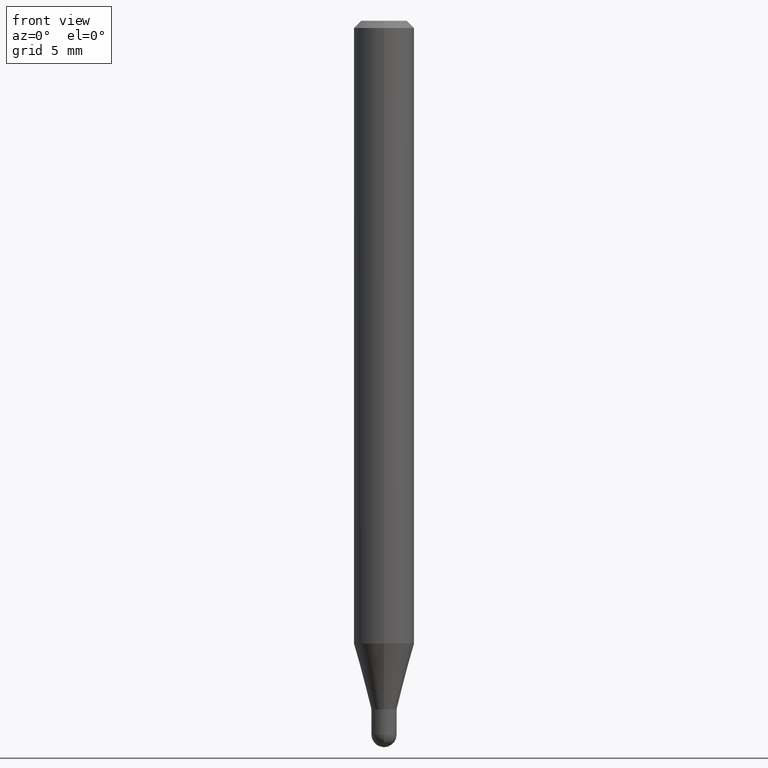
[diagram: clean part render]
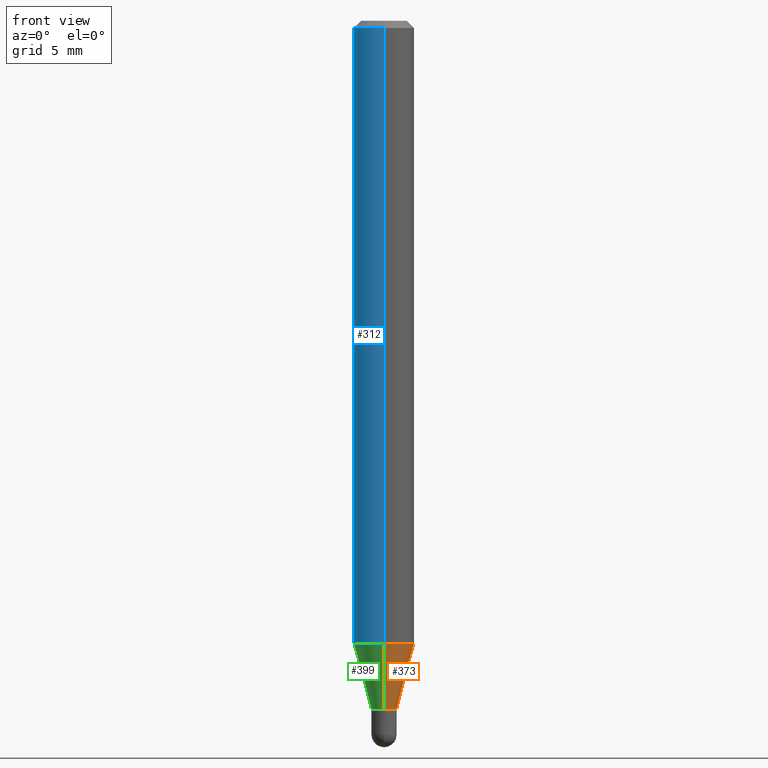
[diagram: same view with three faces highlighted in distinct colors, each labeled with its STEP entity id]
A machine part, front view with three faces highlighted in distinct colors.
Their STEP definitions:

[orange] entity #373 — the highlighted conical surface has half-angle 15 deg.
#6 = EDGE_CURVE ( 'NONE', #105, #171, #96, .T. ) ;
#31 = ORIENTED_EDGE ( 'NONE', *, *, #294, .T. ) ;
#35 = EDGE_CURVE ( 'NONE', #171, #178, #357, .T. ) ;
#36 = CARTESIAN_POINT ( 'NONE',  ( 3.144151605738781381E-16, 0.02599999999999522485, -1.421999999999999931 ) ) ;
#58 = DIRECTION ( 'NONE',  ( -2.445468490087946806E-29, 3.491481791512312384E-15, 1.000000000000000000 ) ) ;
#62 = DIRECTION ( 'NONE',  ( 1.839019923739649619E-15, 0.2588190451025318972, 0.9659258262890650926 ) ) ;
#65 = CARTESIAN_POINT ( 'NONE',  ( 3.477456192905060686E-29, -4.964887107530508633E-15, -1.421999999999999931 ) ) ;
#80 = VERTEX_POINT ( 'NONE', #36 ) ;
#82 = VECTOR ( 'NONE', #62, 39.37007874015748854 ) ;
#96 = LINE ( 'NONE', #186, #283 ) ;
#105 = VERTEX_POINT ( 'NONE', #392 ) ;
#121 = DIRECTION ( 'NONE',  ( -2.445468490087946806E-29, 3.491481791512312384E-15, 1.000000000000000000 ) ) ;
#123 = ORIENTED_EDGE ( 'NONE', *, *, #454, .T. ) ;
#124 = CONICAL_SURFACE ( 'NONE', #413, 0.02600000000000018963, 0.2617993877991575125 ) ;
#171 = VERTEX_POINT ( 'NONE', #512 ) ;
#178 = VERTEX_POINT ( 'NONE', #315 ) ;
#186 = CARTESIAN_POINT ( 'NONE',  ( -1.815570296198094513E-16, -0.02600000000000515440, -1.421999999999999931 ) ) ;
#193 = CARTESIAN_POINT ( 'NONE',  ( 3.144334831059003707E-29, -4.489277965984193733E-15, -1.285780145523741202 ) ) ;
#205 = ORIENTED_EDGE ( 'NONE', *, *, #6, .F. ) ;
#215 = CARTESIAN_POINT ( 'NONE',  ( 1.847411112976621549E-16, 0.02599999999999522485, -1.421999999999999931 ) ) ;
#224 = DIRECTION ( 'NONE',  ( -6.982962677686265922E-15, -1.000000000000000000, 0.000000000000000000 ) ) ;
#249 = ORIENTED_EDGE ( 'NONE', *, *, #35, .F. ) ;
#262 = DIRECTION ( 'NONE',  ( -6.982962677686265922E-15, -1.000000000000000000, 4.370956789862821150E-15 ) ) ;
#269 = FACE_OUTER_BOUND ( 'NONE', #474, .T. ) ;
#270 = AXIS2_PLACEMENT_3D ( 'NONE', #193, #58, #262 ) ;
#283 = VECTOR ( 'NONE', #409, 39.37007874015748854 ) ;
#294 = EDGE_CURVE ( 'NONE', #105, #80, #386, .T. ) ;
#315 = CARTESIAN_POINT ( 'NONE',  ( 4.440892098500937762E-16, 0.06249999999999548972, -1.285780145523741425 ) ) ;
#340 = DIRECTION ( 'NONE',  ( -2.445468490087946806E-29, 3.491481791512312384E-15, 1.000000000000000000 ) ) ;
#357 = CIRCLE ( 'NONE', #270, 0.06250000000000000000 ) ;
#373 = ADVANCED_FACE ( 'NONE', ( #269 ), #124, .T. ) ;
#386 = CIRCLE ( 'NONE', #463, 0.02600000000000018963 ) ;
#392 = CARTESIAN_POINT ( 'NONE',  ( -1.815570296198094513E-16, -0.02600000000000515440, -1.421999999999999931 ) ) ;
#409 = DIRECTION ( 'NONE',  ( -1.807323732225379049E-15, -0.2588190451025252359, 0.9659258262890670910 ) ) ;
#413 = AXIS2_PLACEMENT_3D ( 'NONE', #65, #340, #224 ) ;
#432 = DIRECTION ( 'NONE',  ( -6.982962677686265922E-15, -1.000000000000000000, 0.000000000000000000 ) ) ;
#454 = EDGE_CURVE ( 'NONE', #80, #178, #491, .T. ) ;
#463 = AXIS2_PLACEMENT_3D ( 'NONE', #475, #121, #432 ) ;
#474 = EDGE_LOOP ( 'NONE', ( #31, #123, #249, #205 ) ) ;
#475 = CARTESIAN_POINT ( 'NONE',  ( 3.477456192905060686E-29, -4.964887107530508633E-15, -1.421999999999999931 ) ) ;
#491 = LINE ( 'NONE', #215, #82 ) ;
#512 = CARTESIAN_POINT ( 'NONE',  ( -4.364351673553603615E-16, -0.06250000000000451028, -1.285780145523740758 ) ) ;

[blue] entity #312 — the highlighted cylindrical surface (edge-blend (fillet) strip) has radius 1.5875 mm, axis along (-0, 0, 1).
#10 = AXIS2_PLACEMENT_3D ( 'NONE', #379, #412, #192 ) ;
#64 = EDGE_CURVE ( 'NONE', #178, #483, #462, .T. ) ;
#75 = VECTOR ( 'NONE', #424, 39.37007874015748143 ) ;
#86 = DIRECTION ( 'NONE',  ( -6.982962677686265922E-15, -1.000000000000000000, 3.491481791512312384E-15 ) ) ;
#118 = CARTESIAN_POINT ( 'NONE',  ( -4.364351673553916201E-16, -0.06250000000000000000, 2.182176119695195240E-16 ) ) ;
#127 = EDGE_CURVE ( 'NONE', #171, #440, #387, .T. ) ;
#169 = CARTESIAN_POINT ( 'NONE',  ( 0.000000000000000000, 0.000000000000000000, 0.000000000000000000 ) ) ;
#171 = VERTEX_POINT ( 'NONE', #512 ) ;
#178 = VERTEX_POINT ( 'NONE', #315 ) ;
#192 = DIRECTION ( 'NONE',  ( -6.982962677686265922E-15, -1.000000000000000000, 3.483106191921935554E-15 ) ) ;
#198 = AXIS2_PLACEMENT_3D ( 'NONE', #438, #289, #449 ) ;
#247 = CYLINDRICAL_SURFACE ( 'NONE', #419, 0.06250000000000000000 ) ;
#257 = EDGE_CURVE ( 'NONE', #178, #171, #309, .T. ) ;
#258 = CARTESIAN_POINT ( 'NONE',  ( 4.440892098500941706E-16, 0.06249999999999995143, -0.01500000000000028394 ) ) ;
#273 = ORIENTED_EDGE ( 'NONE', *, *, #127, .T. ) ;
#289 = DIRECTION ( 'NONE',  ( -2.445468490087946806E-29, 3.491481791512312384E-15, 1.000000000000000000 ) ) ;
#309 = CIRCLE ( 'NONE', #198, 0.06250000000000000000 ) ;
#312 = ADVANCED_FACE ( 'NONE', ( #360 ), #247, .T. ) ;
#315 = CARTESIAN_POINT ( 'NONE',  ( 4.440892098500937762E-16, 0.06249999999999548972, -1.285780145523741425 ) ) ;
#321 = ORIENTED_EDGE ( 'NONE', *, *, #457, .F. ) ;
#354 = CARTESIAN_POINT ( 'NONE',  ( 4.440892098500625669E-16, 0.06250000000000000000, -2.182176119695195240E-16 ) ) ;
#360 = FACE_OUTER_BOUND ( 'NONE', #366, .T. ) ;
#366 = EDGE_LOOP ( 'NONE', ( #395, #425, #273, #321 ) ) ;
#379 = CARTESIAN_POINT ( 'NONE',  ( 3.668202735131936832E-31, -5.237222687268491576E-17, -0.01500000000000006710 ) ) ;
#381 = CARTESIAN_POINT ( 'NONE',  ( -4.364351673553912750E-16, -0.06250000000000005551, -0.01499999999999984852 ) ) ;
#387 = LINE ( 'NONE', #118, #510 ) ;
#394 = DIRECTION ( 'NONE',  ( -2.445468490087946806E-29, 3.491481791512312778E-15, 1.000000000000000000 ) ) ;
#395 = ORIENTED_EDGE ( 'NONE', *, *, #64, .F. ) ;
#396 = CIRCLE ( 'NONE', #10, 0.06250000000000000000 ) ;
#412 = DIRECTION ( 'NONE',  ( -2.445468490087946806E-29, 3.491481791512312384E-15, 1.000000000000000000 ) ) ;
#419 = AXIS2_PLACEMENT_3D ( 'NONE', #169, #477, #86 ) ;
#424 = DIRECTION ( 'NONE',  ( -2.445468490087946806E-29, 3.491481791512312778E-15, 1.000000000000000000 ) ) ;
#425 = ORIENTED_EDGE ( 'NONE', *, *, #257, .T. ) ;
#438 = CARTESIAN_POINT ( 'NONE',  ( 3.144334831059003707E-29, -4.489277965984193733E-15, -1.285780145523741202 ) ) ;
#440 = VERTEX_POINT ( 'NONE', #381 ) ;
#449 = DIRECTION ( 'NONE',  ( -6.982962677686265922E-15, -1.000000000000000000, 4.370956789862821150E-15 ) ) ;
#457 = EDGE_CURVE ( 'NONE', #483, #440, #396, .T. ) ;
#462 = LINE ( 'NONE', #354, #75 ) ;
#477 = DIRECTION ( 'NONE',  ( -2.445468490087946806E-29, 3.491481791512312384E-15, 1.000000000000000000 ) ) ;
#483 = VERTEX_POINT ( 'NONE', #258 ) ;
#510 = VECTOR ( 'NONE', #394, 39.37007874015748143 ) ;
#512 = CARTESIAN_POINT ( 'NONE',  ( -4.364351673553603615E-16, -0.06250000000000451028, -1.285780145523740758 ) ) ;

[green] entity #399 — the highlighted conical surface has half-angle 15 deg.
#4 = EDGE_LOOP ( 'NONE', ( #230, #385, #126, #81 ) ) ;
#6 = EDGE_CURVE ( 'NONE', #105, #171, #96, .T. ) ;
#13 = AXIS2_PLACEMENT_3D ( 'NONE', #509, #469, #164 ) ;
#36 = CARTESIAN_POINT ( 'NONE',  ( 3.144151605738781381E-16, 0.02599999999999522485, -1.421999999999999931 ) ) ;
#62 = DIRECTION ( 'NONE',  ( 1.839019923739649619E-15, 0.2588190451025318972, 0.9659258262890650926 ) ) ;
#80 = VERTEX_POINT ( 'NONE', #36 ) ;
#81 = ORIENTED_EDGE ( 'NONE', *, *, #257, .F. ) ;
#82 = VECTOR ( 'NONE', #62, 39.37007874015748854 ) ;
#96 = LINE ( 'NONE', #186, #283 ) ;
#105 = VERTEX_POINT ( 'NONE', #392 ) ;
#126 = ORIENTED_EDGE ( 'NONE', *, *, #6, .T. ) ;
#131 = EDGE_CURVE ( 'NONE', #80, #105, #271, .T. ) ;
#146 = FACE_OUTER_BOUND ( 'NONE', #4, .T. ) ;
#164 = DIRECTION ( 'NONE',  ( -6.982962677686265922E-15, -1.000000000000000000, 0.000000000000000000 ) ) ;
#171 = VERTEX_POINT ( 'NONE', #512 ) ;
#178 = VERTEX_POINT ( 'NONE', #315 ) ;
#186 = CARTESIAN_POINT ( 'NONE',  ( -1.815570296198094513E-16, -0.02600000000000515440, -1.421999999999999931 ) ) ;
#198 = AXIS2_PLACEMENT_3D ( 'NONE', #438, #289, #449 ) ;
#212 = CONICAL_SURFACE ( 'NONE', #502, 0.02600000000000018963, 0.2617993877991575125 ) ;
#215 = CARTESIAN_POINT ( 'NONE',  ( 1.847411112976621549E-16, 0.02599999999999522485, -1.421999999999999931 ) ) ;
#230 = ORIENTED_EDGE ( 'NONE', *, *, #454, .F. ) ;
#257 = EDGE_CURVE ( 'NONE', #178, #171, #309, .T. ) ;
#271 = CIRCLE ( 'NONE', #13, 0.02600000000000018963 ) ;
#283 = VECTOR ( 'NONE', #409, 39.37007874015748854 ) ;
#289 = DIRECTION ( 'NONE',  ( -2.445468490087946806E-29, 3.491481791512312384E-15, 1.000000000000000000 ) ) ;
#291 = DIRECTION ( 'NONE',  ( -2.445468490087946806E-29, 3.491481791512312384E-15, 1.000000000000000000 ) ) ;
#309 = CIRCLE ( 'NONE', #198, 0.06250000000000000000 ) ;
#315 = CARTESIAN_POINT ( 'NONE',  ( 4.440892098500937762E-16, 0.06249999999999548972, -1.285780145523741425 ) ) ;
#331 = CARTESIAN_POINT ( 'NONE',  ( 3.477456192905060686E-29, -4.964887107530508633E-15, -1.421999999999999931 ) ) ;
#385 = ORIENTED_EDGE ( 'NONE', *, *, #131, .T. ) ;
#392 = CARTESIAN_POINT ( 'NONE',  ( -1.815570296198094513E-16, -0.02600000000000515440, -1.421999999999999931 ) ) ;
#399 = ADVANCED_FACE ( 'NONE', ( #146 ), #212, .T. ) ;
#409 = DIRECTION ( 'NONE',  ( -1.807323732225379049E-15, -0.2588190451025252359, 0.9659258262890670910 ) ) ;
#438 = CARTESIAN_POINT ( 'NONE',  ( 3.144334831059003707E-29, -4.489277965984193733E-15, -1.285780145523741202 ) ) ;
#449 = DIRECTION ( 'NONE',  ( -6.982962677686265922E-15, -1.000000000000000000, 4.370956789862821150E-15 ) ) ;
#454 = EDGE_CURVE ( 'NONE', #80, #178, #491, .T. ) ;
#469 = DIRECTION ( 'NONE',  ( -2.445468490087946806E-29, 3.491481791512312384E-15, 1.000000000000000000 ) ) ;
#491 = LINE ( 'NONE', #215, #82 ) ;
#502 = AXIS2_PLACEMENT_3D ( 'NONE', #331, #291, #504 ) ;
#504 = DIRECTION ( 'NONE',  ( -6.982962677686265922E-15, -1.000000000000000000, 0.000000000000000000 ) ) ;
#509 = CARTESIAN_POINT ( 'NONE',  ( 3.477456192905060686E-29, -4.964887107530508633E-15, -1.421999999999999931 ) ) ;
#512 = CARTESIAN_POINT ( 'NONE',  ( -4.364351673553603615E-16, -0.06250000000000451028, -1.285780145523740758 ) ) ;